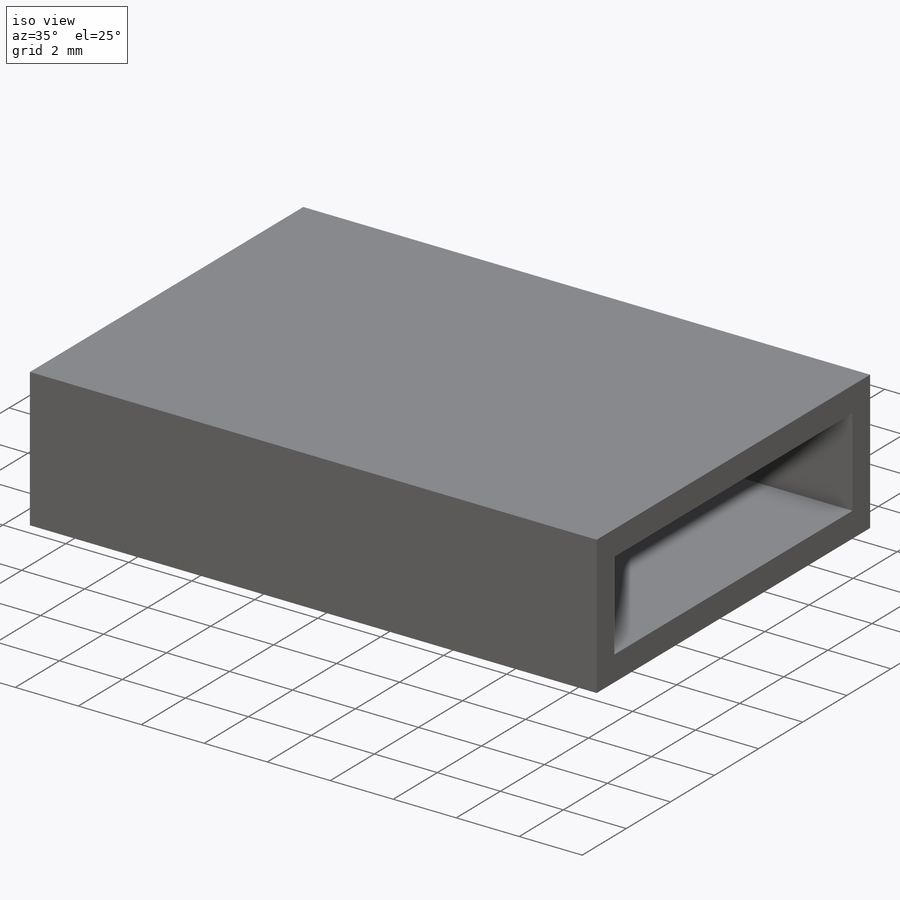
[diagram: iso view]
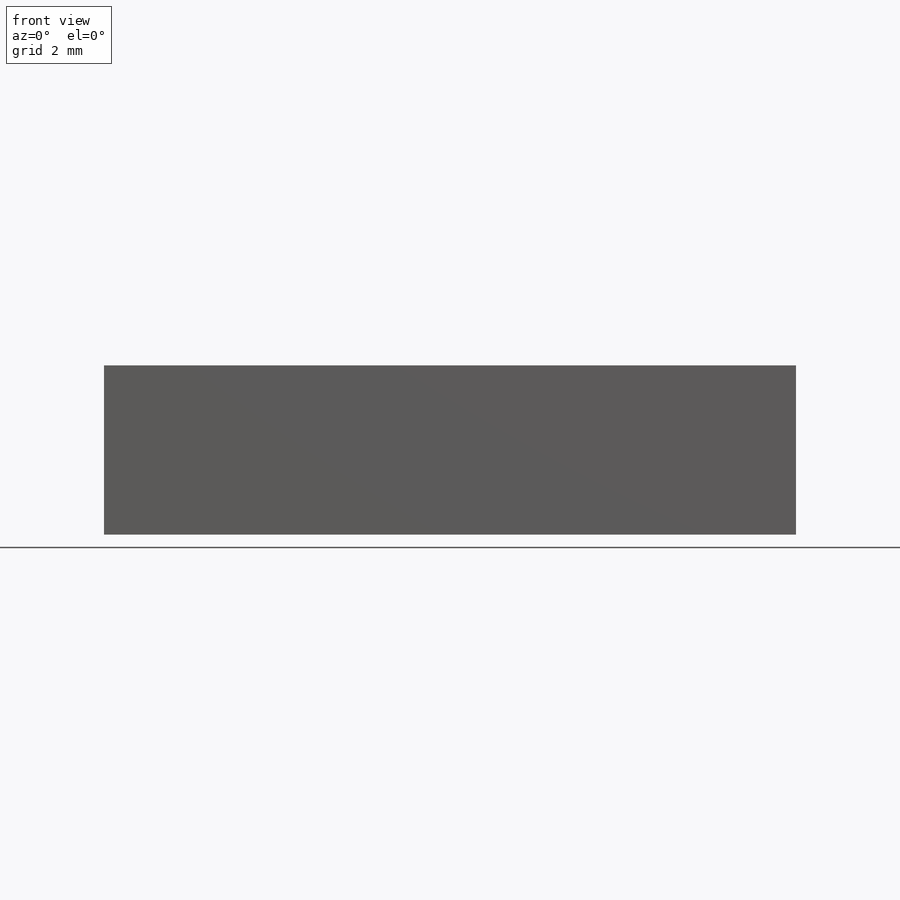
[diagram: front view]
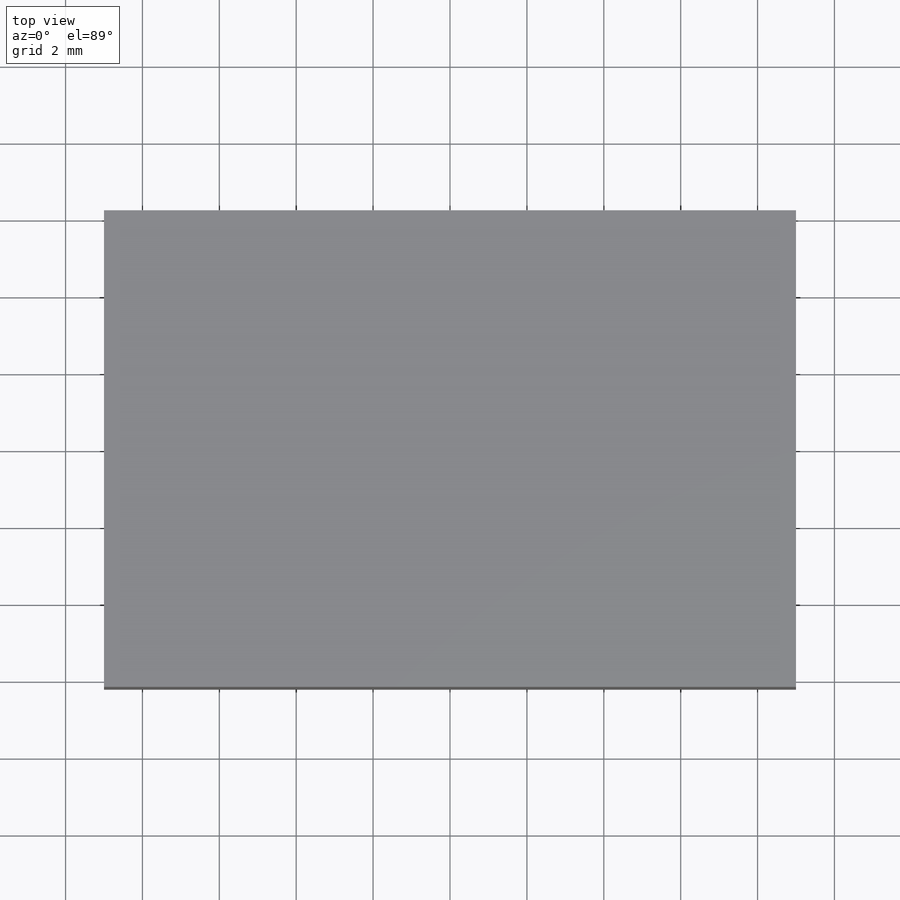
[diagram: top view]
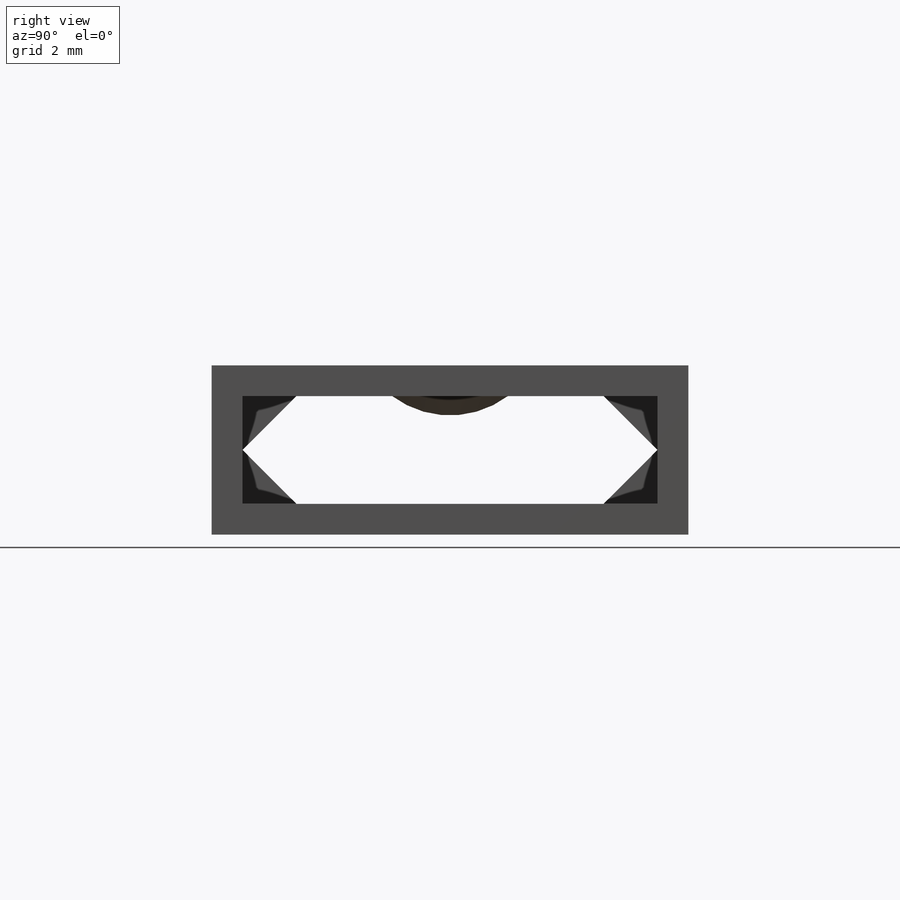
[diagram: right view]
SOLIDWORKS PART (.sldprt)
format: sldprt  version: not decoded by parser v0  size: 301,056 bytes
history: native  units: mm
features: sketch x3, extrude x3, material x1, chamfer x1 (+12 scaffold rows collapsed)
feature tree (20):
  scaffold x12  (default folders/planes/origin — collapsed)
  material  "Material <not specified>"
  sketch  "Sketch1"  dims[c1.D6=5.0mm c1.D1=~16.206297mm c1.D2=10.8mm c1.D3=2.8mm c1.D4=~2.486413mm c2.D4=90.0deg c2.D5=~2.697186mm c3.D5=90.0deg c3.D7=2.0mm c3.D8=3.37mm c3.D1=0.8mm]
  extrude  "Boss-Extrude1"  Depth=9mm
  extrude  "Boss-Extrude2"  [1 undecoded]
  sketch  "Sketch1<3>"  dims[D1=0.5mm D2=0.5mm]
  extrude  "Boss-Extrude3"  [1 undecoded]
  sketch  "Sketch1<4>"  dims[D1=2.0mm D19=5.0mm]
  chamfer  "Chamfer1"  Distance=2mm Angle=21deg
decode coverage: 5 of 7 modeling features carry decoded parameters
note: ~ marks probable driven/reference dimensions
note: 2 parameter values undecoded
note: suppression state not decoded; provenance and decode notes live in map.json
